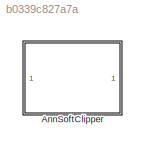
MODEL slx_b0339c827a7a
KIND library
CONFIG AbsTol = auto
CONFIG EnableMultiTasking = off
CONFIG FixedStep = auto
CONFIG MaxStep = auto
CONFIG MinStep = auto
CONFIG RelTol = 1e-3
CONFIG SampleTimeConstraint = Unconstrained
CONFIG SolverName = VariableStepAuto
CONFIG StartTime = 0.0
CONFIG StopTime = 10.0
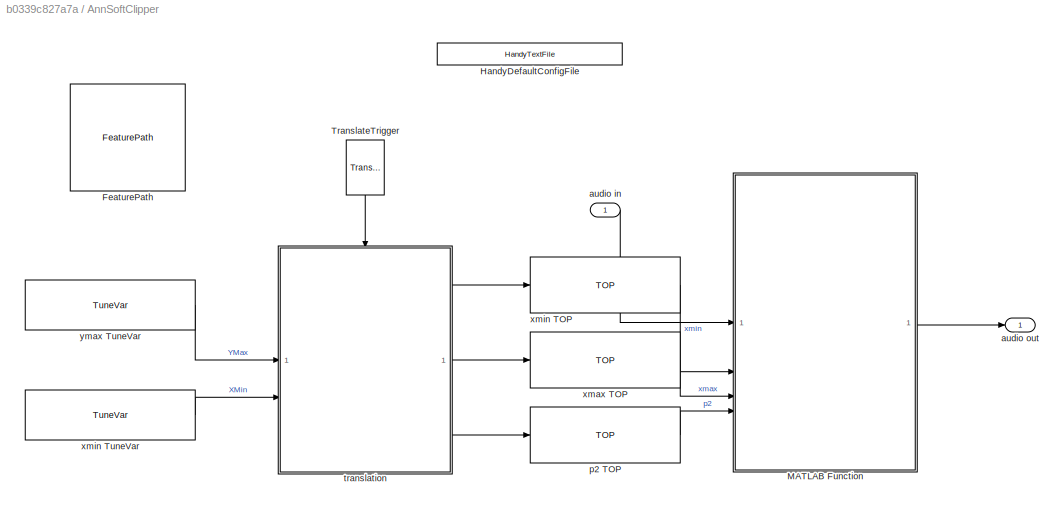
BLOCK [SubSystem] AnnSoftClipper
BLOCK [Reference] AnnSoftClipper/FeaturePath  REF=FeaturePath/FeaturePath
  SourceBlock = FeaturePath/FeaturePath
  SourceProductName = Bose Talaria
  SourceType = Talaria Feature Path
BLOCK [Reference] AnnSoftClipper/HandyDefaultConfigFile  REF=HandyTextFile/HandyTextFile
  SourceBlock = HandyTextFile/HandyTextFile
  SourceProductName = Bose Talaria
  SourceType = Talaria Handy Text File
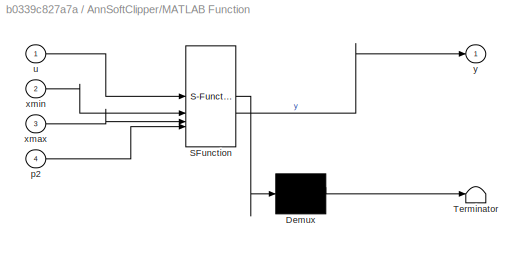
BLOCK [SubSystem] AnnSoftClipper/MATLAB Function
  ErrorFcn = Stateflow.Translate.translate
  PermitHierarchicalResolution = ExplicitOnly
  SFBlockType = MATLAB Function
  TreatAsAtomicUnit = on
BLOCK [Demux] AnnSoftClipper/MATLAB Function/ Demux 
  Outputs = 1
BLOCK [S-Function] AnnSoftClipper/MATLAB Function/ SFunction 
  EnableBusSupport = off
  FunctionName = sf_sfun
  PortCounts = [4 2]
  SFcnIsStateOwnerBlock = off
  SFunctionDeploymentMode = off
  Tag = Stateflow S-Function 2
BLOCK [Terminator] AnnSoftClipper/MATLAB Function/ Terminator 
BLOCK [Inport] AnnSoftClipper/MATLAB Function/p2
  Port = 4
BLOCK [Inport] AnnSoftClipper/MATLAB Function/u
BLOCK [Inport] AnnSoftClipper/MATLAB Function/xmax
  Port = 3
BLOCK [Inport] AnnSoftClipper/MATLAB Function/xmin
  Port = 2
BLOCK [Outport] AnnSoftClipper/MATLAB Function/y
  VectorParamsAs1DForOutWhenUnconnected = off
BLOCK [Reference] AnnSoftClipper/TranslateTrigger  REF=TuneVar/TranslateTrigger
  NameLocation = left
  SourceBlock = TuneVar/TranslateTrigger
  SourceProductName = Bose Talaria
  SourceType = Talaria Translate Trigger
BLOCK [Inport] AnnSoftClipper/audio in
BLOCK [Outport] AnnSoftClipper/audio out
  VectorParamsAs1DForOutWhenUnconnected = off
BLOCK [Reference] AnnSoftClipper/p2 TOP  REF=TOP/TOP
  SourceBlock = TOP/TOP
  SourceProductName = Bose Talaria
  SourceType = Talaria Target Overlay Parameter
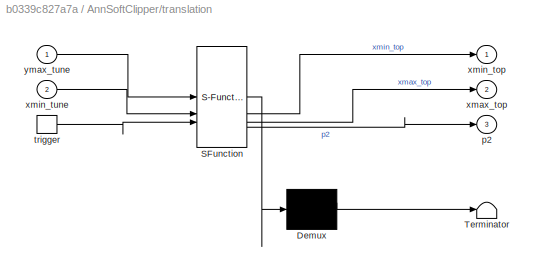
BLOCK [SubSystem] AnnSoftClipper/translation
  ErrorFcn = Stateflow.Translate.translate
  PermitHierarchicalResolution = ExplicitOnly
  SFBlockType = MATLAB Function
  TreatAsAtomicUnit = on
BLOCK [Demux] AnnSoftClipper/translation/ Demux 
  Outputs = 1
BLOCK [S-Function] AnnSoftClipper/translation/ SFunction 
  EnableBusSupport = off
  FunctionName = sf_sfun
  PortCounts = [3 4]
  SFcnIsStateOwnerBlock = off
  SFunctionDeploymentMode = off
  Tag = Stateflow S-Function 1
BLOCK [Terminator] AnnSoftClipper/translation/ Terminator 
BLOCK [Outport] AnnSoftClipper/translation/p2
  Port = 3
  VectorParamsAs1DForOutWhenUnconnected = off
BLOCK [TriggerPort] AnnSoftClipper/translation/trigger
  ShowOutputPort = on
  StatesWhenEnabling = held
  TriggerType = function-call
  VariantControl = (inherit)
BLOCK [Outport] AnnSoftClipper/translation/xmax_top
  Port = 2
  VectorParamsAs1DForOutWhenUnconnected = off
BLOCK [Outport] AnnSoftClipper/translation/xmin_top
  VectorParamsAs1DForOutWhenUnconnected = off
BLOCK [Inport] AnnSoftClipper/translation/xmin_tune
  Port = 2
BLOCK [Inport] AnnSoftClipper/translation/ymax_tune
BLOCK [Reference] AnnSoftClipper/xmax TOP  REF=TOP/TOP
  SourceBlock = TOP/TOP
  SourceProductName = Bose Talaria
  SourceType = Talaria Target Overlay Parameter
BLOCK [Reference] AnnSoftClipper/xmin TOP  REF=TOP/TOP
  SourceBlock = TOP/TOP
  SourceProductName = Bose Talaria
  SourceType = Talaria Target Overlay Parameter
BLOCK [Reference] AnnSoftClipper/xmin TuneVar  REF=TuneVar/TuneVar
  SourceBlock = TuneVar/TuneVar
  SourceProductName = Bose Talaria
  SourceType = Talaria Tune Variable
BLOCK [Reference] AnnSoftClipper/ymax TuneVar  REF=TuneVar/TuneVar
  SourceBlock = TuneVar/TuneVar
  SourceProductName = Bose Talaria
  SourceType = Talaria Tune Variable
LINE AnnSoftClipper/MATLAB Function:1 -> AnnSoftClipper/audio out:1
LINE AnnSoftClipper/TranslateTrigger:1 -> AnnSoftClipper/translation:trigger
LINE AnnSoftClipper/audio in:1 -> AnnSoftClipper/MATLAB Function:1
LINE AnnSoftClipper/p2 TOP:1 -> AnnSoftClipper/MATLAB Function:4
LINE AnnSoftClipper/translation:1 -> AnnSoftClipper/xmin TOP:1
LINE AnnSoftClipper/translation:2 -> AnnSoftClipper/xmax TOP:1
LINE AnnSoftClipper/translation:3 -> AnnSoftClipper/p2 TOP:1
LINE AnnSoftClipper/xmax TOP:1 -> AnnSoftClipper/MATLAB Function:3
LINE AnnSoftClipper/xmin TOP:1 -> AnnSoftClipper/MATLAB Function:2
LINE AnnSoftClipper/xmin TuneVar:1 -> AnnSoftClipper/translation:2
LINE AnnSoftClipper/ymax TuneVar:1 -> AnnSoftClipper/translation:1
CHART AnnSoftClipper/translation states=1 transitions=1
  STATE_LABEL 'eML_blk_kernel()'
  STATE_LABEL 'SCRIPT:\nfunction [xmin_top,xmax_top, p2] = fcn(ymax_tune, xmin_tune)\n% Compute the xmin and xmax value\nxmin_top = xmin_tune.Value;\nxmax_top = 2 * ymax_tune.Value - xmin_top;\n% Compute p2\np2 = 0;\nif (xmax_top ~= xmin_top)\n    p2 = 1 / (2 * (xmax_top - xmin_top));\nend\n'
CHART AnnSoftClipper/MATLAB Function states=1 transitions=1
  STATE_LABEL 'eML_blk_kernel()'
  STATE_LABEL 'SCRIPT:\nfunction y = softclip(u, xmin, xmax, p2)\n% Grab data from input\ny = coder.nullcopy(u);\n[frame_size, channel_count] = size(u);\n% Process the audio\nfor i = 1:channel_count\n    for j = 1:frame_size\n        % Compute the gain for this sample. Implementation copied from BDSP\n        x1 = abs( u(j,i) );\n        % Compute the min among x1 & xmax\n        x1 = min(x1, xmax);\n        x2 = x1 - xmin;...<+232ch>'
CHART  states=0 transitions=0
CHART  states=0 transitions=0
